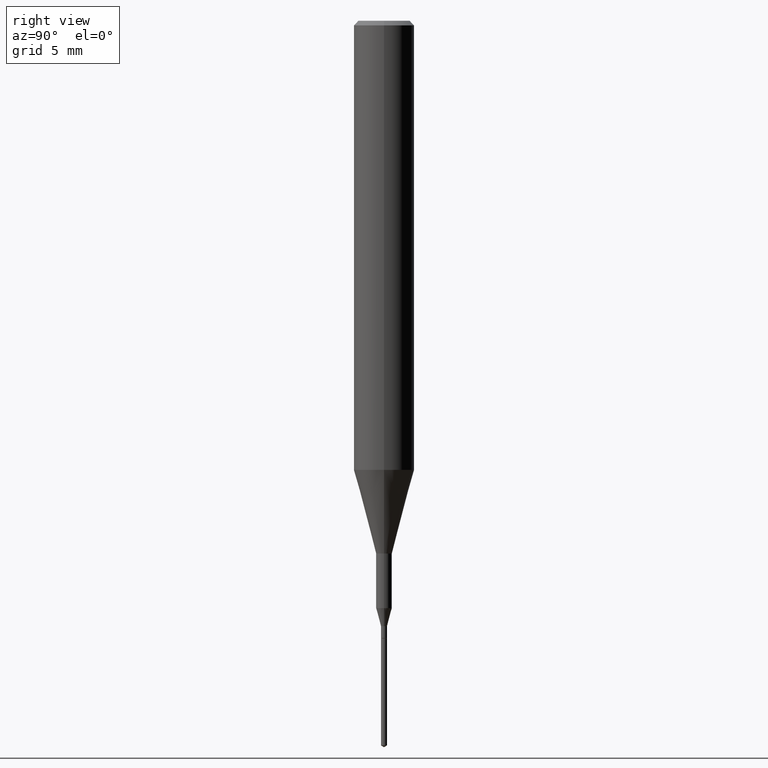
[diagram: clean part render]
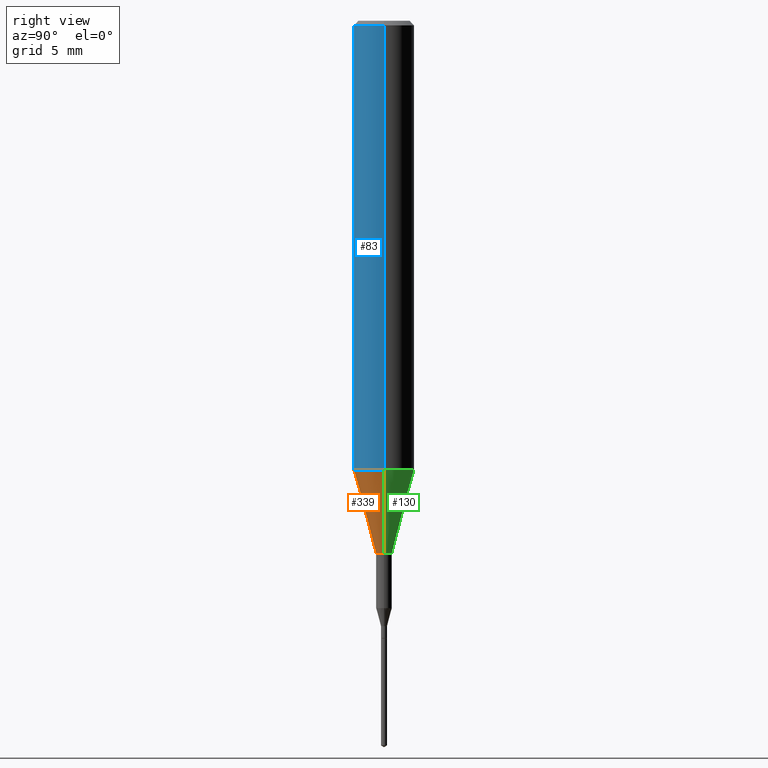
[diagram: same view with three faces highlighted in distinct colors, each labeled with its STEP entity id]
A machine part, right view with three faces highlighted in distinct colors.
Their STEP definitions:

[orange] entity #339 — the highlighted conical surface has half-angle 15 deg.
#26 = DIRECTION ( 'NONE',  ( 0.2588190451025214611, 1.565188264969620982E-15, 0.9659258262890679791 ) ) ;
#33 = DIRECTION ( 'NONE',  ( -2.445468806185136597E-29, 3.491481338843145583E-15, 1.000000000000000000 ) ) ;
#44 = FACE_OUTER_BOUND ( 'NONE', #221, .T. ) ;
#75 = VECTOR ( 'NONE', #26, 39.37007874015748143 ) ;
#98 = DIRECTION ( 'NONE',  ( -2.445468806185136597E-29, 3.491481338843145583E-15, 1.000000000000000000 ) ) ;
#107 = EDGE_CURVE ( 'NONE', #383, #211, #370, .T. ) ;
#122 = ORIENTED_EDGE ( 'NONE', *, *, #107, .F. ) ;
#128 = DIRECTION ( 'NONE',  ( -0.2588190451025214611, 5.211531920934550253E-15, 0.9659258262890679791 ) ) ;
#137 = AXIS2_PLACEMENT_3D ( 'NONE', #499, #278, #240 ) ;
#159 = VERTEX_POINT ( 'NONE', #332 ) ;
#211 = VERTEX_POINT ( 'NONE', #449 ) ;
#221 = EDGE_LOOP ( 'NONE', ( #573, #341, #488, #122 ) ) ;
#224 = CARTESIAN_POINT ( 'NONE',  ( -0.06250000000000011102, -2.793884921928740709E-15, -0.9273926501499395458 ) ) ;
#225 = DIRECTION ( 'NONE',  ( 1.000000000000000000, -6.982962677686259611E-15, 0.000000000000000000 ) ) ;
#240 = DIRECTION ( 'NONE',  ( 1.000000000000000000, -6.982962677686265922E-15, 0.000000000000000000 ) ) ;
#244 = AXIS2_PLACEMENT_3D ( 'NONE', #582, #33, #225 ) ;
#260 = EDGE_CURVE ( 'NONE', #541, #159, #288, .T. ) ;
#274 = EDGE_CURVE ( 'NONE', #541, #383, #365, .T. ) ;
#278 = DIRECTION ( 'NONE',  ( -2.445468806185136597E-29, 3.491481338843145583E-15, 1.000000000000000000 ) ) ;
#284 = DIRECTION ( 'NONE',  ( 1.000000000000000000, -6.982962677686265922E-15, 0.000000000000000000 ) ) ;
#288 = CIRCLE ( 'NONE', #244, 0.01624999999999999709 ) ;
#328 = CARTESIAN_POINT ( 'NONE',  ( -0.01624999999999999709, -3.921875449828473803E-15, -1.100000000000000089 ) ) ;
#332 = CARTESIAN_POINT ( 'NONE',  ( 0.01624999999999999709, -3.954102616239861778E-15, -1.100000000000000089 ) ) ;
#339 = ADVANCED_FACE ( 'NONE', ( #44 ), #500, .T. ) ;
#341 = ORIENTED_EDGE ( 'NONE', *, *, #260, .T. ) ;
#365 = LINE ( 'NONE', #224, #485 ) ;
#370 = CIRCLE ( 'NONE', #557, 0.06250000000000011102 ) ;
#383 = VERTEX_POINT ( 'NONE', #567 ) ;
#448 = CARTESIAN_POINT ( 'NONE',  ( 0.06250000000000011102, -3.674409299134196572E-15, -0.9273926501499395458 ) ) ;
#449 = CARTESIAN_POINT ( 'NONE',  ( 0.06250000000000011102, -3.674409299134196572E-15, -0.9273926501499395458 ) ) ;
#485 = VECTOR ( 'NONE', #128, 39.37007874015748143 ) ;
#488 = ORIENTED_EDGE ( 'NONE', *, *, #574, .T. ) ;
#499 = CARTESIAN_POINT ( 'NONE',  ( 2.267909797027042920E-29, -3.237974131778804114E-15, -0.9273926501499395458 ) ) ;
#500 = CONICAL_SURFACE ( 'NONE', #137, 0.06250000000000011102, 0.2617993877991501850 ) ;
#508 = CARTESIAN_POINT ( 'NONE',  ( 2.267909797027042920E-29, -3.237974131778804114E-15, -0.9273926501499395458 ) ) ;
#539 = LINE ( 'NONE', #448, #75 ) ;
#541 = VERTEX_POINT ( 'NONE', #328 ) ;
#557 = AXIS2_PLACEMENT_3D ( 'NONE', #508, #98, #284 ) ;
#567 = CARTESIAN_POINT ( 'NONE',  ( -0.06250000000000011102, -2.793884921928740709E-15, -0.9273926501499395458 ) ) ;
#573 = ORIENTED_EDGE ( 'NONE', *, *, #274, .F. ) ;
#574 = EDGE_CURVE ( 'NONE', #159, #211, #539, .T. ) ;
#582 = CARTESIAN_POINT ( 'NONE',  ( 2.690015686803650369E-29, -3.840629472727460101E-15, -1.100000000000000089 ) ) ;

[blue] entity #83 — the highlighted cylindrical surface (edge-blend (fillet) strip) has radius 1.5875 mm, axis along (-0, 0, 1).
#56 = ORIENTED_EDGE ( 'NONE', *, *, #147, .T. ) ;
#64 = ORIENTED_EDGE ( 'NONE', *, *, #334, .F. ) ;
#82 = DIRECTION ( 'NONE',  ( 1.000000000000000000, -6.982962677686266711E-15, 0.000000000000000000 ) ) ;
#83 = ADVANCED_FACE ( 'NONE', ( #333 ), #517, .T. ) ;
#98 = DIRECTION ( 'NONE',  ( -2.445468806185136597E-29, 3.491481338843145583E-15, 1.000000000000000000 ) ) ;
#107 = EDGE_CURVE ( 'NONE', #383, #211, #370, .T. ) ;
#110 = EDGE_LOOP ( 'NONE', ( #64, #312, #56, #461 ) ) ;
#126 = VECTOR ( 'NONE', #403, 39.37007874015748143 ) ;
#147 = EDGE_CURVE ( 'NONE', #211, #481, #241, .T. ) ;
#189 = LINE ( 'NONE', #552, #126 ) ;
#195 = DIRECTION ( 'NONE',  ( -2.445468806185136597E-29, 3.491481338843145583E-15, 1.000000000000000000 ) ) ;
#211 = VERTEX_POINT ( 'NONE', #449 ) ;
#230 = CARTESIAN_POINT ( 'NONE',  ( 0.06250000000000005551, -4.364351673553920638E-16, 3.047610484872462323E-30 ) ) ;
#241 = LINE ( 'NONE', #230, #542 ) ;
#284 = DIRECTION ( 'NONE',  ( 1.000000000000000000, -6.982962677686265922E-15, 0.000000000000000000 ) ) ;
#312 = ORIENTED_EDGE ( 'NONE', *, *, #107, .T. ) ;
#315 = CIRCLE ( 'NONE', #558, 0.06250000000000000000 ) ;
#333 = FACE_OUTER_BOUND ( 'NONE', #110, .T. ) ;
#334 = EDGE_CURVE ( 'NONE', #383, #446, #189, .T. ) ;
#346 = EDGE_CURVE ( 'NONE', #446, #481, #315, .T. ) ;
#370 = CIRCLE ( 'NONE', #557, 0.06250000000000011102 ) ;
#377 = CARTESIAN_POINT ( 'NONE',  ( 0.000000000000000000, 0.000000000000000000, 0.000000000000000000 ) ) ;
#378 = CARTESIAN_POINT ( 'NONE',  ( 2.292627005798581499E-31, -3.273263755165472033E-17, -0.009375000000000065573 ) ) ;
#383 = VERTEX_POINT ( 'NONE', #567 ) ;
#403 = DIRECTION ( 'NONE',  ( -2.445468806185136877E-29, 3.491481338843145188E-15, 1.000000000000000000 ) ) ;
#412 = DIRECTION ( 'NONE',  ( -2.445468806185136877E-29, 3.491481338843145188E-15, 1.000000000000000000 ) ) ;
#431 = CARTESIAN_POINT ( 'NONE',  ( -0.06250000000000000000, -1.191264174815165938E-15, -0.009375000000000065573 ) ) ;
#446 = VERTEX_POINT ( 'NONE', #431 ) ;
#449 = CARTESIAN_POINT ( 'NONE',  ( 0.06250000000000011102, -3.674409299134196572E-15, -0.9273926501499395458 ) ) ;
#454 = CARTESIAN_POINT ( 'NONE',  ( 0.06250000000000000000, -4.691678049070464390E-16, -0.009375000000000065573 ) ) ;
#459 = DIRECTION ( 'NONE',  ( 1.000000000000000000, -6.982962677686266711E-15, 4.876176775795935232E-29 ) ) ;
#461 = ORIENTED_EDGE ( 'NONE', *, *, #346, .F. ) ;
#481 = VERTEX_POINT ( 'NONE', #454 ) ;
#493 = DIRECTION ( 'NONE',  ( -2.445468806185136597E-29, 3.491481338843145583E-15, 1.000000000000000000 ) ) ;
#508 = CARTESIAN_POINT ( 'NONE',  ( 2.267909797027042920E-29, -3.237974131778804114E-15, -0.9273926501499395458 ) ) ;
#517 = CYLINDRICAL_SURFACE ( 'NONE', #526, 0.06250000000000005551 ) ;
#526 = AXIS2_PLACEMENT_3D ( 'NONE', #377, #195, #459 ) ;
#542 = VECTOR ( 'NONE', #412, 39.37007874015748143 ) ;
#552 = CARTESIAN_POINT ( 'NONE',  ( -0.06250000000000005551, 4.440892098500630106E-16, -3.074334431409318916E-30 ) ) ;
#557 = AXIS2_PLACEMENT_3D ( 'NONE', #508, #98, #284 ) ;
#558 = AXIS2_PLACEMENT_3D ( 'NONE', #378, #493, #82 ) ;
#567 = CARTESIAN_POINT ( 'NONE',  ( -0.06250000000000011102, -2.793884921928740709E-15, -0.9273926501499395458 ) ) ;

[green] entity #130 — the highlighted conical surface has half-angle 15 deg.
#13 = CARTESIAN_POINT ( 'NONE',  ( 2.267909797027042920E-29, -3.237974131778804114E-15, -0.9273926501499395458 ) ) ;
#26 = DIRECTION ( 'NONE',  ( 0.2588190451025214611, 1.565188264969620982E-15, 0.9659258262890679791 ) ) ;
#55 = CONICAL_SURFACE ( 'NONE', #565, 0.06250000000000011102, 0.2617993877991501850 ) ;
#57 = DIRECTION ( 'NONE',  ( 1.000000000000000000, -6.982962677686265922E-15, 0.000000000000000000 ) ) ;
#68 = ORIENTED_EDGE ( 'NONE', *, *, #274, .T. ) ;
#75 = VECTOR ( 'NONE', #26, 39.37007874015748143 ) ;
#91 = EDGE_CURVE ( 'NONE', #211, #383, #423, .T. ) ;
#103 = AXIS2_PLACEMENT_3D ( 'NONE', #492, #321, #489 ) ;
#124 = ORIENTED_EDGE ( 'NONE', *, *, #226, .T. ) ;
#128 = DIRECTION ( 'NONE',  ( -0.2588190451025214611, 5.211531920934550253E-15, 0.9659258262890679791 ) ) ;
#130 = ADVANCED_FACE ( 'NONE', ( #296 ), #55, .T. ) ;
#158 = EDGE_LOOP ( 'NONE', ( #124, #68, #294, #298 ) ) ;
#159 = VERTEX_POINT ( 'NONE', #332 ) ;
#211 = VERTEX_POINT ( 'NONE', #449 ) ;
#224 = CARTESIAN_POINT ( 'NONE',  ( -0.06250000000000011102, -2.793884921928740709E-15, -0.9273926501499395458 ) ) ;
#226 = EDGE_CURVE ( 'NONE', #159, #541, #323, .T. ) ;
#263 = AXIS2_PLACEMENT_3D ( 'NONE', #13, #290, #57 ) ;
#274 = EDGE_CURVE ( 'NONE', #541, #383, #365, .T. ) ;
#290 = DIRECTION ( 'NONE',  ( -2.445468806185136597E-29, 3.491481338843145583E-15, 1.000000000000000000 ) ) ;
#294 = ORIENTED_EDGE ( 'NONE', *, *, #91, .F. ) ;
#296 = FACE_OUTER_BOUND ( 'NONE', #158, .T. ) ;
#298 = ORIENTED_EDGE ( 'NONE', *, *, #574, .F. ) ;
#299 = DIRECTION ( 'NONE',  ( -2.445468806185136597E-29, 3.491481338843145583E-15, 1.000000000000000000 ) ) ;
#321 = DIRECTION ( 'NONE',  ( -2.445468806185136597E-29, 3.491481338843145583E-15, 1.000000000000000000 ) ) ;
#323 = CIRCLE ( 'NONE', #103, 0.01624999999999999709 ) ;
#328 = CARTESIAN_POINT ( 'NONE',  ( -0.01624999999999999709, -3.921875449828473803E-15, -1.100000000000000089 ) ) ;
#332 = CARTESIAN_POINT ( 'NONE',  ( 0.01624999999999999709, -3.954102616239861778E-15, -1.100000000000000089 ) ) ;
#350 = DIRECTION ( 'NONE',  ( 1.000000000000000000, -6.982962677686265922E-15, 0.000000000000000000 ) ) ;
#365 = LINE ( 'NONE', #224, #485 ) ;
#383 = VERTEX_POINT ( 'NONE', #567 ) ;
#393 = CARTESIAN_POINT ( 'NONE',  ( 2.267909797027042920E-29, -3.237974131778804114E-15, -0.9273926501499395458 ) ) ;
#423 = CIRCLE ( 'NONE', #263, 0.06250000000000011102 ) ;
#448 = CARTESIAN_POINT ( 'NONE',  ( 0.06250000000000011102, -3.674409299134196572E-15, -0.9273926501499395458 ) ) ;
#449 = CARTESIAN_POINT ( 'NONE',  ( 0.06250000000000011102, -3.674409299134196572E-15, -0.9273926501499395458 ) ) ;
#485 = VECTOR ( 'NONE', #128, 39.37007874015748143 ) ;
#489 = DIRECTION ( 'NONE',  ( 1.000000000000000000, -6.982962677686259611E-15, 0.000000000000000000 ) ) ;
#492 = CARTESIAN_POINT ( 'NONE',  ( 2.690015686803650369E-29, -3.840629472727460101E-15, -1.100000000000000089 ) ) ;
#539 = LINE ( 'NONE', #448, #75 ) ;
#541 = VERTEX_POINT ( 'NONE', #328 ) ;
#565 = AXIS2_PLACEMENT_3D ( 'NONE', #393, #299, #350 ) ;
#567 = CARTESIAN_POINT ( 'NONE',  ( -0.06250000000000011102, -2.793884921928740709E-15, -0.9273926501499395458 ) ) ;
#574 = EDGE_CURVE ( 'NONE', #159, #211, #539, .T. ) ;